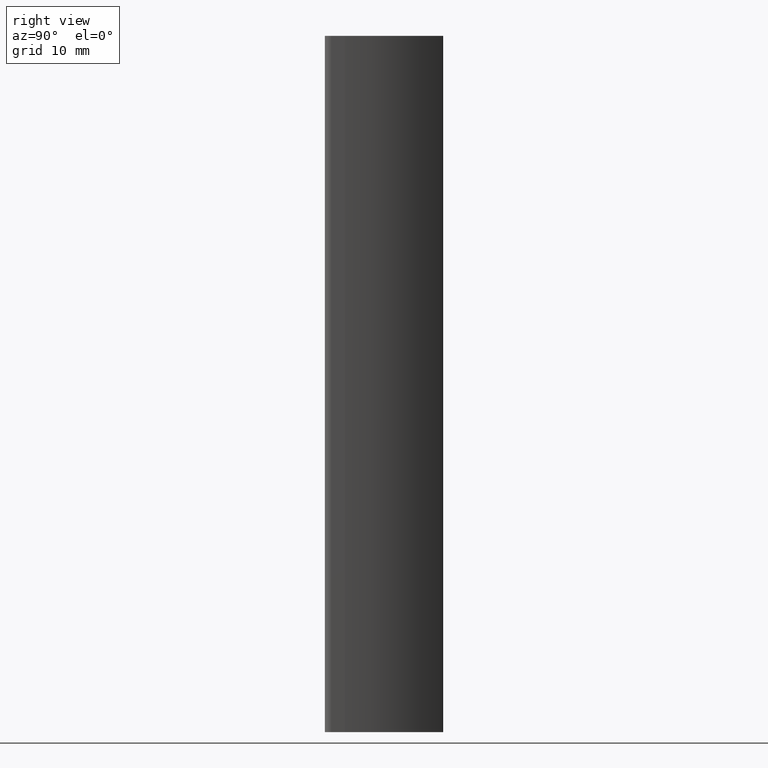
[diagram: clean part render]
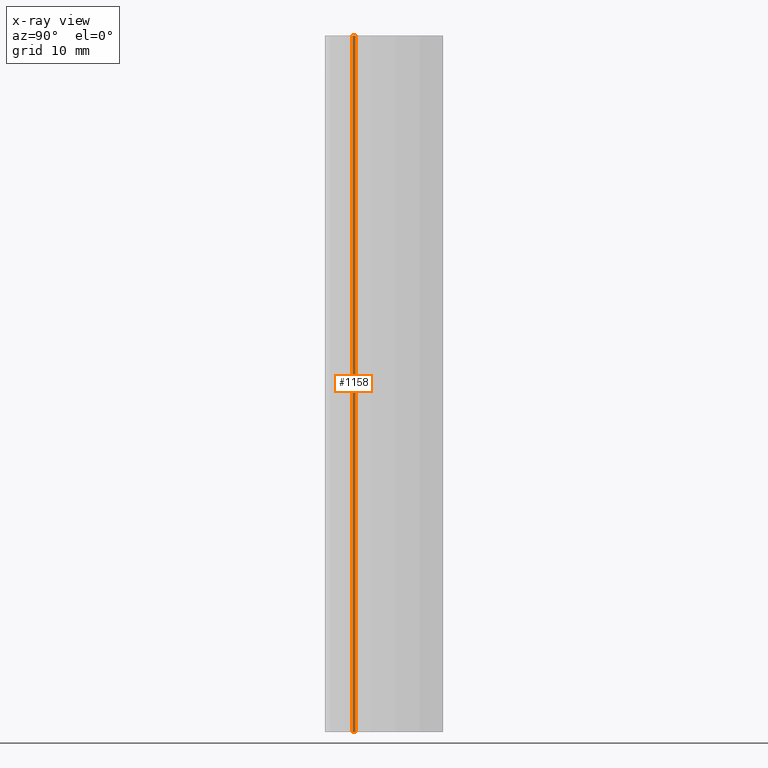
[diagram: x-ray — body ghosted, one internal face saturated and labeled with its STEP entity id]
A machine part, right view, then the same camera in x-ray: the body is ghosted and one INTERNAL B-rep face — a face not visible from any outside direction — is saturated and labeled: STEP entity #1158.
In plain terms, the highlighted planar face has unit normal (1, 0, 0).
Its self-contained STEP definition (entity closure, byte-faithful):
#113=FACE_OUTER_BOUND('',#174,.T.);
#174=EDGE_LOOP('',(#924,#925,#926,#927));
#242=LINE('',#1744,#371);
#289=LINE('',#1859,#418);
#290=LINE('',#1862,#419);
#291=LINE('',#1863,#420);
#371=VECTOR('',#1401,0.400000000000005);
#418=VECTOR('',#1502,100.);
#419=VECTOR('',#1505,0.400000000000005);
#420=VECTOR('',#1506,100.);
#507=VERTEX_POINT('',#1741);
#508=VERTEX_POINT('',#1743);
#549=VERTEX_POINT('',#1857);
#550=VERTEX_POINT('',#1861);
#635=EDGE_CURVE('',#507,#508,#242,.T.);
#693=EDGE_CURVE('',#507,#549,#289,.T.);
#694=EDGE_CURVE('',#550,#549,#290,.T.);
#695=EDGE_CURVE('',#508,#550,#291,.T.);
#924=ORIENTED_EDGE('',*,*,#693,.T.);
#925=ORIENTED_EDGE('',*,*,#694,.F.);
#926=ORIENTED_EDGE('',*,*,#695,.F.);
#927=ORIENTED_EDGE('',*,*,#635,.F.);
#1109=PLANE('',#1251);
#1158=ADVANCED_FACE('',(#113),#1109,.T.);
#1251=AXIS2_PLACEMENT_3D('',#1860,#1503,#1504);
#1401=DIRECTION('',(0.,-1.,0.));
#1502=DIRECTION('',(0.,0.,1.));
#1503=DIRECTION('center_axis',(1.,0.,0.));
#1504=DIRECTION('ref_axis',(0.,1.,0.));
#1505=DIRECTION('',(0.,1.,0.));
#1506=DIRECTION('',(0.,0.,1.));
#1741=CARTESIAN_POINT('',(-8.59965871170089,-4.84998589637557,-50.));
#1743=CARTESIAN_POINT('',(-8.59965871170089,-5.24998589637558,-50.));
#1744=CARTESIAN_POINT('',(-8.59965871170089,-5.24998589637558,-50.));
#1857=CARTESIAN_POINT('',(-8.59965871170089,-4.84998589637557,50.));
#1859=CARTESIAN_POINT('',(-8.59965871170089,-4.84998589637557,0.));
#1860=CARTESIAN_POINT('Origin',(-8.59965871170089,-5.24998589637558,0.));
#1861=CARTESIAN_POINT('',(-8.59965871170089,-5.24998589637558,50.));
#1862=CARTESIAN_POINT('',(-8.59965871170089,-5.24998589637558,50.));
#1863=CARTESIAN_POINT('',(-8.59965871170089,-5.24998589637558,0.));